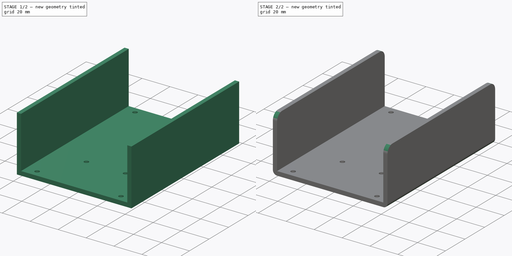
[diagram: build sequence overview — one tinted view per stage of 2, left to right]
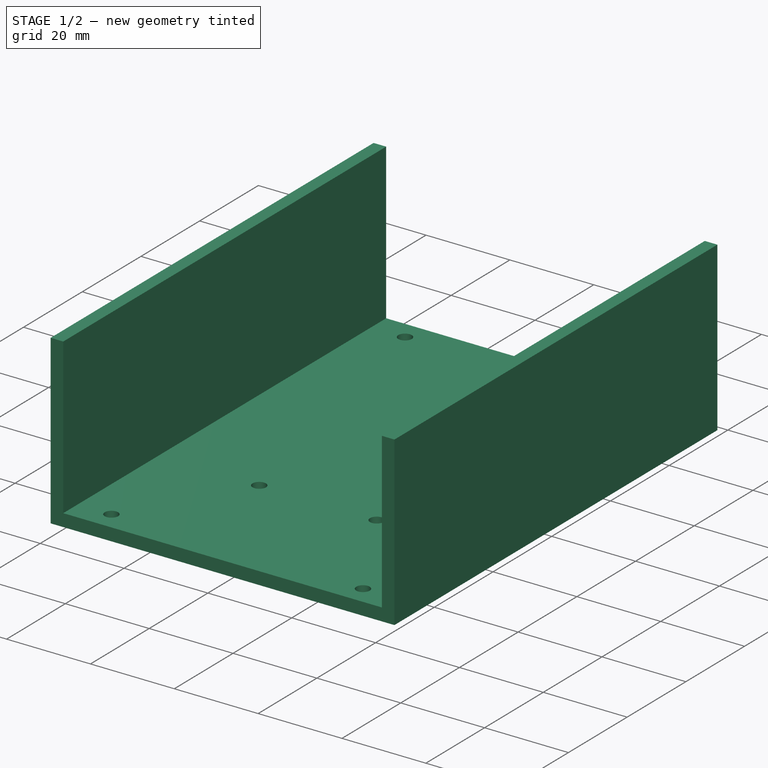
[diagram: stage 1 of 2 — iso view after this stage's code; geometry added in this stage tinted green]
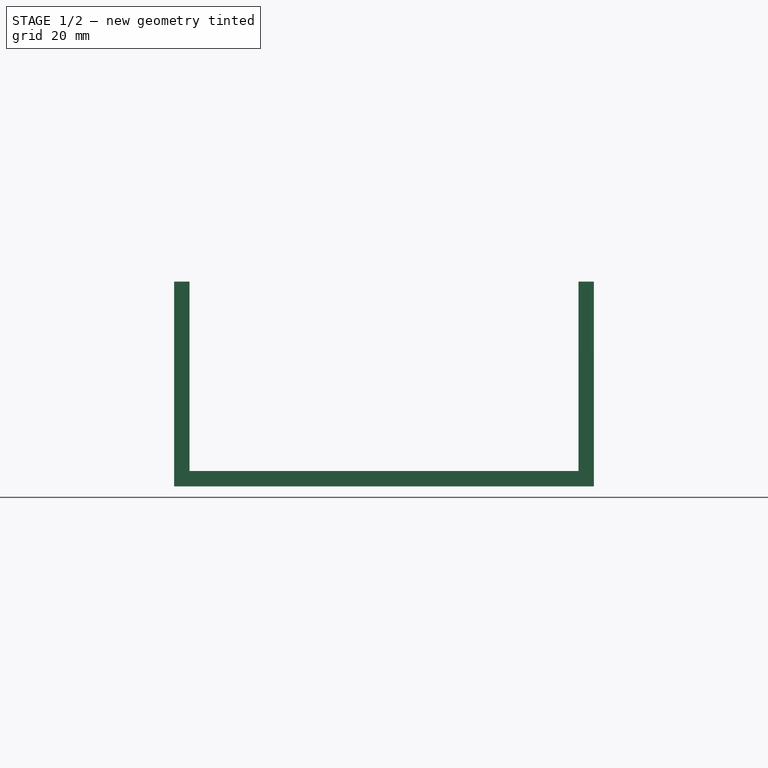
[diagram: stage 1 of 2 — front view after this stage's code; geometry added in this stage tinted green]
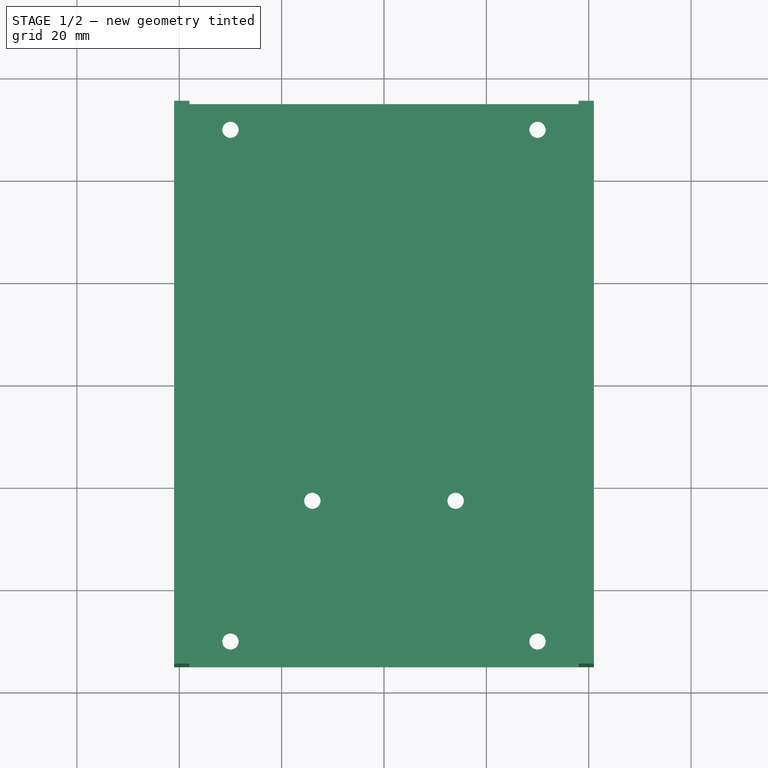
[diagram: stage 1 of 2 — top view after this stage's code; geometry added in this stage tinted green]
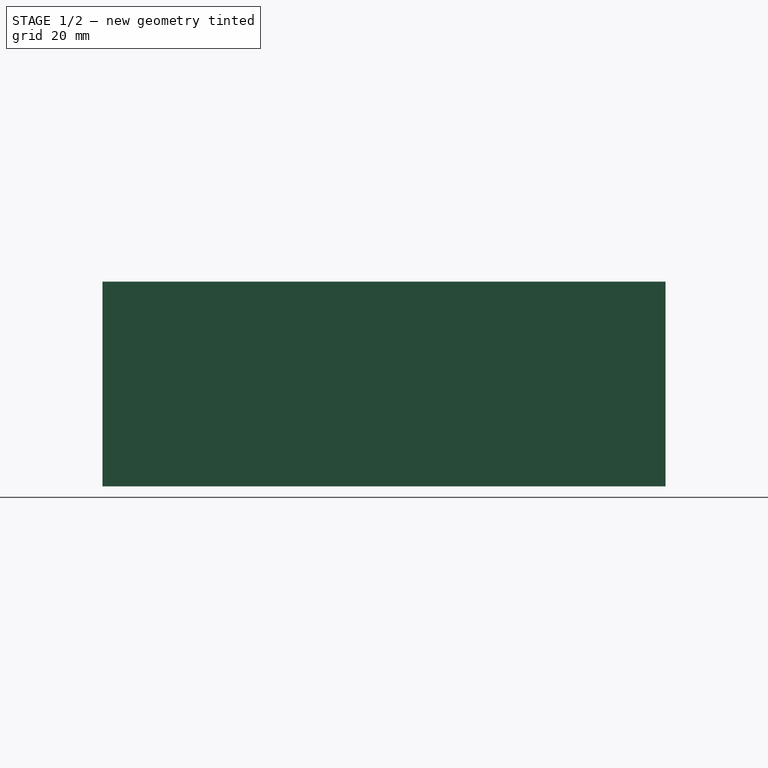
[diagram: stage 1 of 2 — right view after this stage's code; geometry added in this stage tinted green]
FCSTD DOCUMENT  (FreeCAD 1.0R39285 (Git))
Label: heatsink
License: All rights reserved
LicenseURL: http://en.wikipedia.org/wiki/All_rights_reserved
objects: Sketcher::SketchObject×2, PartDesign::Fillet×2, PartDesign::Pad×1, PartDesign::Pocket×1, PartDesign::Body×1
note: 17 computed .brp shape members not serialized (recipe doc carries the construction recipe); baked Part::Feature solids carry a one-line shape summary decoded from their .brp

FEATURE [Sketcher::SketchObject] Sketch
  ArcFitTolerance = 1e-06
  AttachmentSupport = -> [XZ_Plane]
  FullyConstrained = true
  MakeInternals = false
  MapMode = 5
  Placement = pos=(0,0,0) rot=(1,0,0;1.5708rad)
  sketch-geometry (9):
    g0: LineSegment StartX=-41 StartY=-3 StartZ=0 EndX=-41 EndY=37 EndZ=0
    g1: LineSegment StartX=-41 StartY=37 StartZ=0 EndX=-38 EndY=37 EndZ=0
    g2: LineSegment StartX=-38 StartY=37 StartZ=0 EndX=-38 EndY=0 EndZ=0
    g3: LineSegment StartX=-38 StartY=0 StartZ=0 EndX=38 EndY=0 EndZ=0
    g4: LineSegment StartX=38 StartY=0 StartZ=0 EndX=38 EndY=37 EndZ=0
    g5: LineSegment StartX=38 StartY=37 StartZ=0 EndX=41 EndY=37 EndZ=0
    g6: LineSegment StartX=41 StartY=37 StartZ=0 EndX=41 EndY=-3 EndZ=0
    g7: LineSegment StartX=41 StartY=-3 StartZ=0 EndX=-41 EndY=-3 EndZ=0
    g8: LineSegment [constr] StartX=-38 StartY=37 StartZ=0 EndX=38 EndY=37 EndZ=0
  constraints (25):
    c: Vertical(g0)
    c: Coincident(g0,g1)
    c: Coincident(g1,g2)
    c: PointOnObject(g2,g-1)
    c: Vertical(g2)
    c: Coincident(g2,g3)
    c: PointOnObject(g3,g-1)
    c: Coincident(g3,g4)
    c: Coincident(g4,g5)
    c: Horizontal(g5)
    c: Coincident(g5,g6)
    c: Vertical(g6)
    c: Coincident(g6,g7)
    c: Coincident(g7,g0)
    c: Horizontal(g7)
    c: Horizontal(g1)
    c: Equal(g1,g5)
    c: DistanceX(g1,g1) = 3
    c: Vertical(g4)
    c: DistanceY(g0,g2) = 3
    c: DistanceX(g3,g3) = 76
    c: DistanceY(g0,g0) = 40
    c: Coincident(g8,g1)
    c: Coincident(g8,g4)
    c: Symmetric(g1,g4,g-2)
FEATURE [PartDesign::Pad] Pad
  Direction = (0,-1,2e-16)
  Length = 110
  Length2 = 10
  Midplane = true
  Placement = pos=(0,0,0) rot=(1,0,0;1.5708rad)
  Profile = -> Sketch
  ReferenceAxis = -> Sketch [N_Axis]
  Refine = true
  Suppressed = false
  Type = 0
FEATURE [Sketcher::SketchObject] Sketch001
  ArcFitTolerance = 1e-06
  AttachmentSupport = -> [Pad]
  FullyConstrained = true
  MakeInternals = false
  MapMode = 5
  Placement = pos=(0,0,0) rot=(0,0,1;3.14159rad)
  sketch-geometry (11):
    g0: LineSegment [constr] StartX=-30 StartY=50 StartZ=0 EndX=-30 EndY=-50 EndZ=0
    g1: LineSegment [constr] StartX=-30 StartY=-50 StartZ=0 EndX=30 EndY=-50 EndZ=0
    g2: LineSegment [constr] StartX=30 StartY=-50 StartZ=0 EndX=30 EndY=50 EndZ=0
    g3: LineSegment [constr] StartX=30 StartY=50 StartZ=0 EndX=-30 EndY=50 EndZ=0
    g4: Circle CenterX=-30 CenterY=50 CenterZ=0 NormalX=0 NormalY=0 NormalZ=1 AngleXU=0 Radius=1.6
    g5: Circle CenterX=30 CenterY=50 CenterZ=0 NormalX=0 NormalY=0 NormalZ=1 AngleXU=0 Radius=1.6
    g6: Circle CenterX=-30 CenterY=-50 CenterZ=0 NormalX=0 NormalY=0 NormalZ=1 AngleXU=0 Radius=1.6
    g7: Circle CenterX=30 CenterY=-50 CenterZ=0 NormalX=0 NormalY=0 NormalZ=1 AngleXU=0 Radius=1.6
    g8: LineSegment [constr] StartX=-30 StartY=22.5 StartZ=0 EndX=30 EndY=22.5 EndZ=0
    g9: Circle CenterX=-14 CenterY=22.5 CenterZ=0 NormalX=0 NormalY=0 NormalZ=1 AngleXU=0 Radius=1.6
    g10: Circle CenterX=14 CenterY=22.5 CenterZ=0 NormalX=0 NormalY=0 NormalZ=1 AngleXU=0 Radius=1.6
  constraints (28):
    c: Coincident(g0,g1)
    c: Coincident(g1,g2)
    c: Coincident(g2,g3)
    c: Coincident(g3,g0)
    c: Vertical(g2)
    c: Horizontal(g1)
    c: DistanceY(g0,g0) = 100
    c: DistanceX(g3,g3) = 60
    c: Symmetric(g0,g2,g-2)
    c: Symmetric(g0,g0,g-1)
    c: Coincident(g4,g0)
    c: Coincident(g5,g2)
    c: Coincident(g6,g0)
    c: Coincident(g7,g1)
    c: Equal(g7,g6)
    c: Equal(g6,g4)
    c: Equal(g4,g5)
    c: Diameter(g4) = 3.2
    c: PointOnObject(g8,g0)
    c: PointOnObject(g8,g2)
    c: Horizontal(g8)
    c: DistanceY(g8,g0) = 27.5
    c: PointOnObject(g9,g8)
    c: PointOnObject(g10,g8)
    c: Equal(g9,g10)
    c: Equal(g10,g4)
    c: DistanceX(g8,g9) = 16
    c: DistanceX(g9,g10) = 28
FEATURE [PartDesign::Pocket] Pocket
  BaseFeature = -> Pad
  Direction = (0,0,-1)
  Length = 5
  Length2 = 5
  Placement = pos=(0,0,0) rot=(1,0,0;1.5708rad)
  Profile = -> Sketch001
  ReferenceAxis = -> Sketch001 [N_Axis]
  Refine = true
  Suppressed = false
  Type = 1
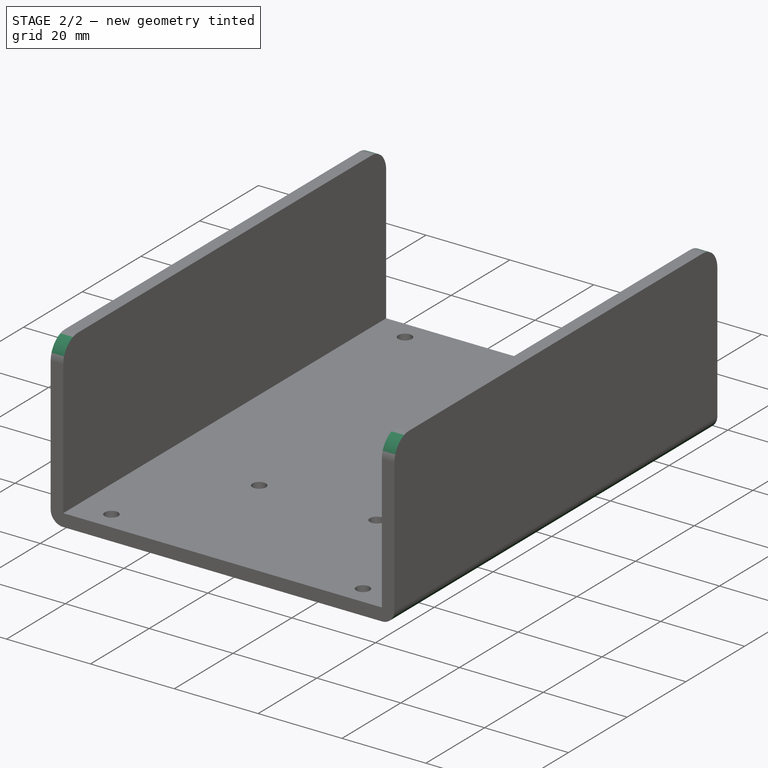
[diagram: stage 2 of 2 — iso view after this stage's code; geometry added in this stage tinted green]
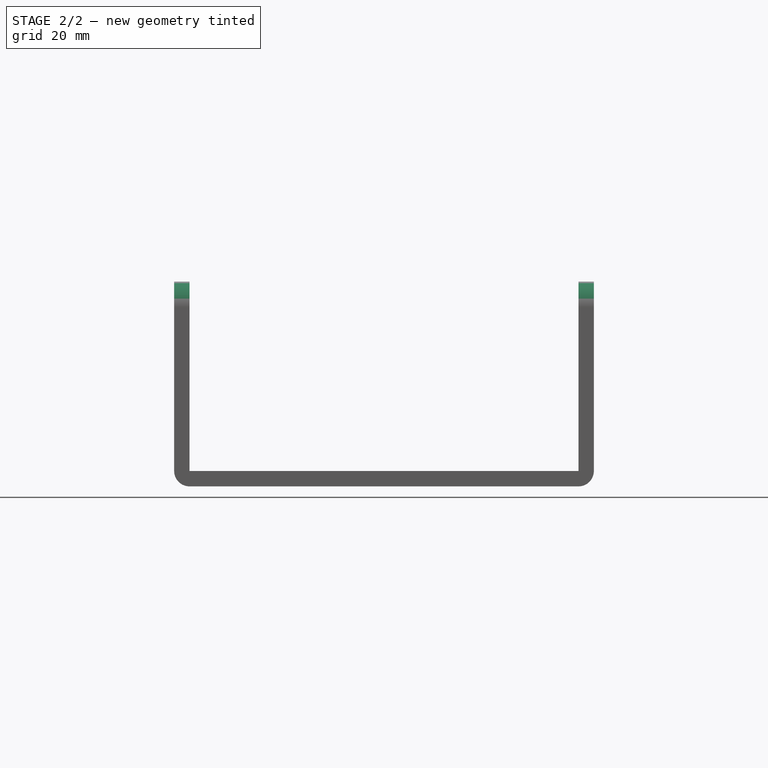
[diagram: stage 2 of 2 — front view after this stage's code; geometry added in this stage tinted green]
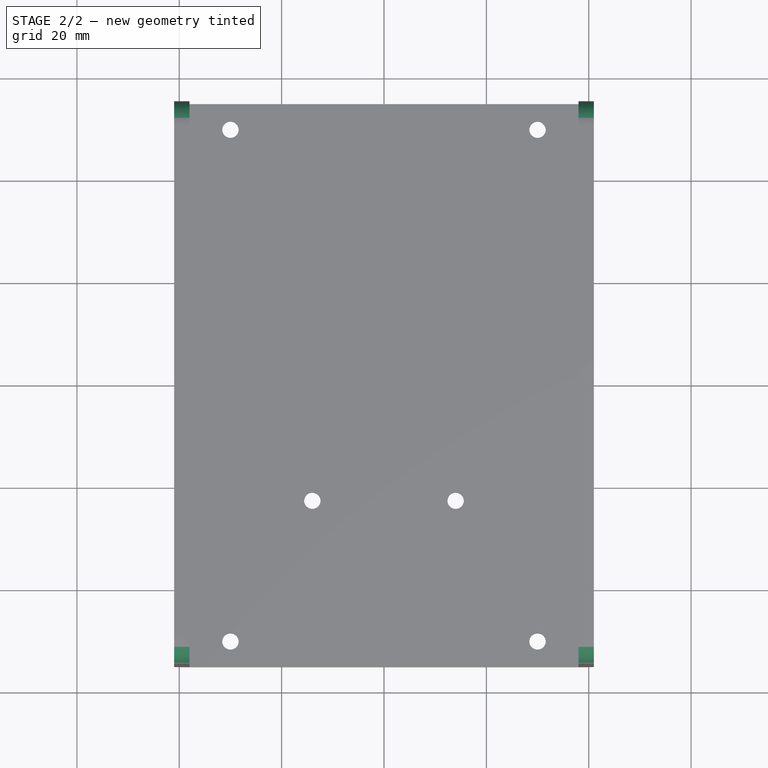
[diagram: stage 2 of 2 — top view after this stage's code; geometry added in this stage tinted green]
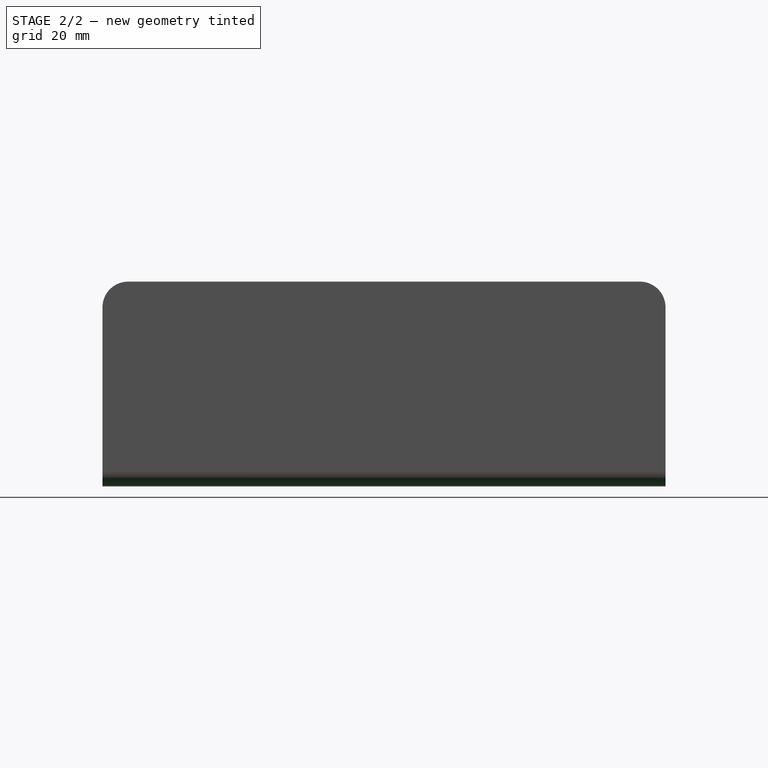
[diagram: stage 2 of 2 — right view after this stage's code; geometry added in this stage tinted green]
FEATURE [PartDesign::Fillet] Fillet
  Base = -> Pocket [Edge1,Edge5]
  BaseFeature = -> Pocket
  Placement = pos=(0,0,0) rot=(1,0,0;1.5708rad)
  Radius = 3
  Refine = true
  SupportTransform = false
  Suppressed = false
  UseAllEdges = false
FEATURE [PartDesign::Fillet] Fillet001
  Base = -> Fillet [Edge24,Edge17,Edge6,Edge13]
  BaseFeature = -> Fillet
  Placement = pos=(0,0,0) rot=(1,0,0;1.5708rad)
  Radius = 5
  Refine = true
  SupportTransform = false
  Suppressed = false
  UseAllEdges = false
FEATURE [PartDesign::Body] Body
  AllowCompound = false
  Group = -> [Sketch,Pad,Sketch001,Pocket,Fillet,Fillet001]
  Origin = -> Origin
  Tip = -> Fillet001
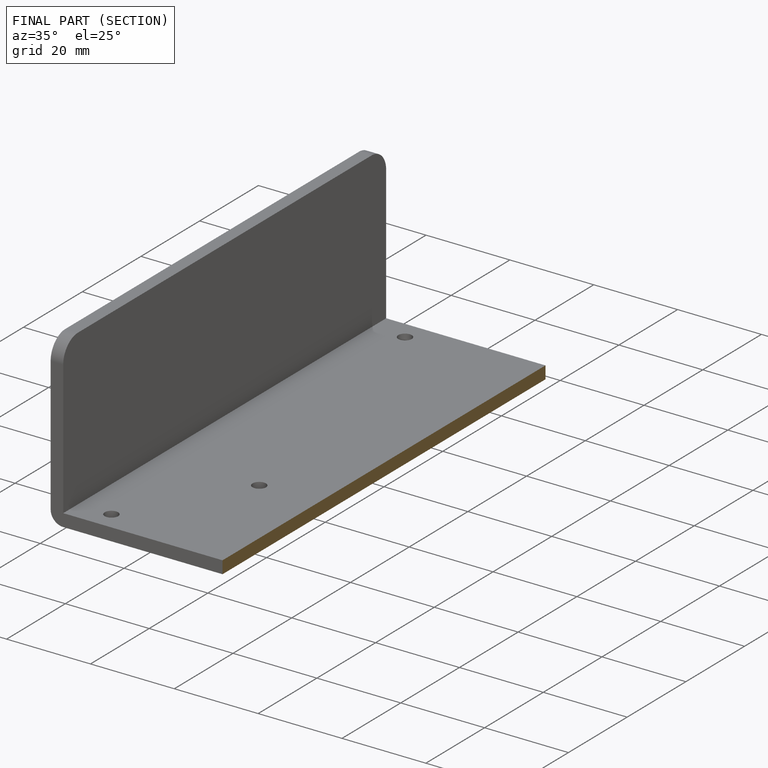
[diagram: finished part — half-section view (interior)]
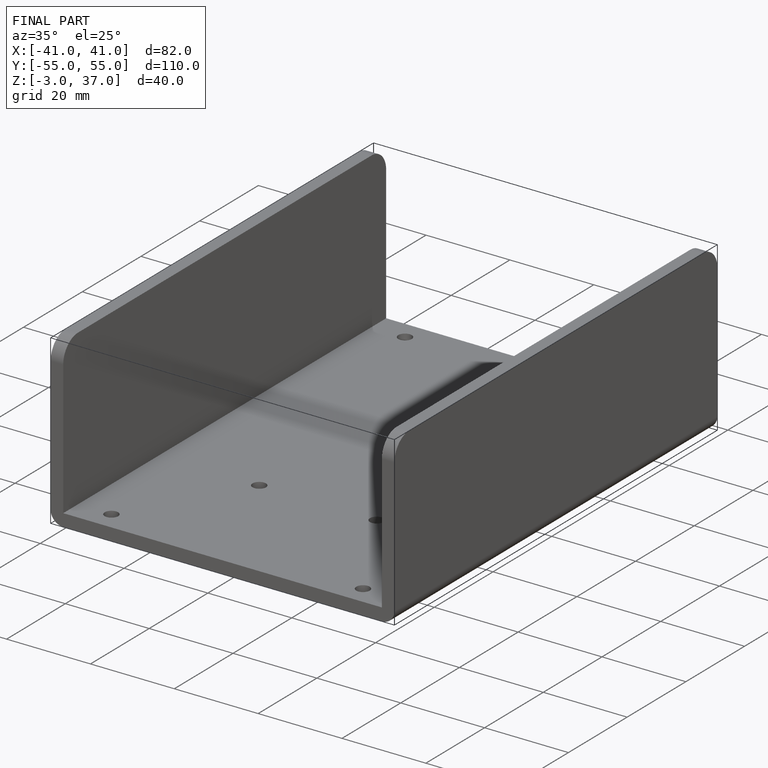
[diagram: finished part — iso view with bounding-box wireframe]
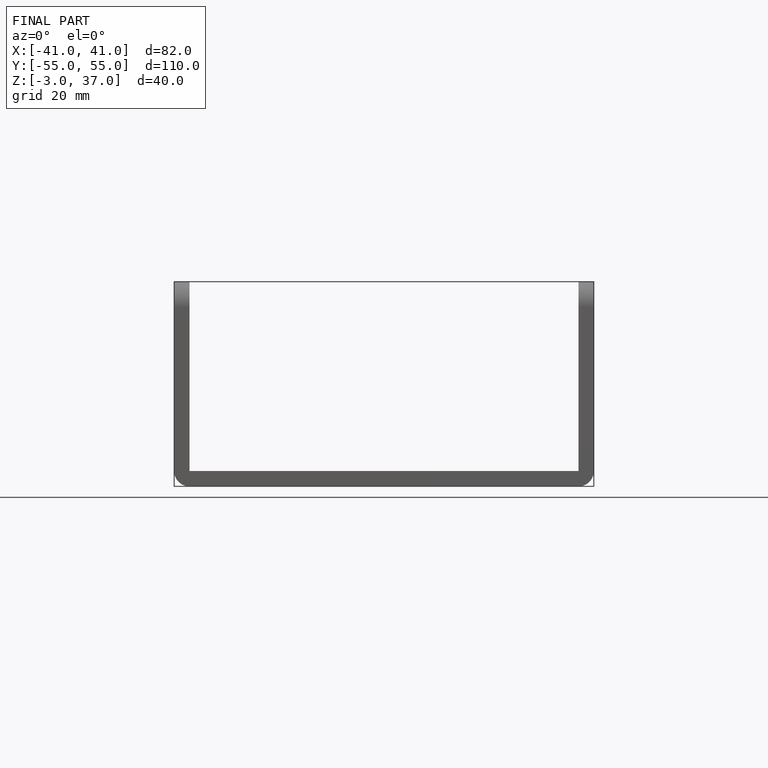
[diagram: finished part — front view with bounding-box wireframe]
